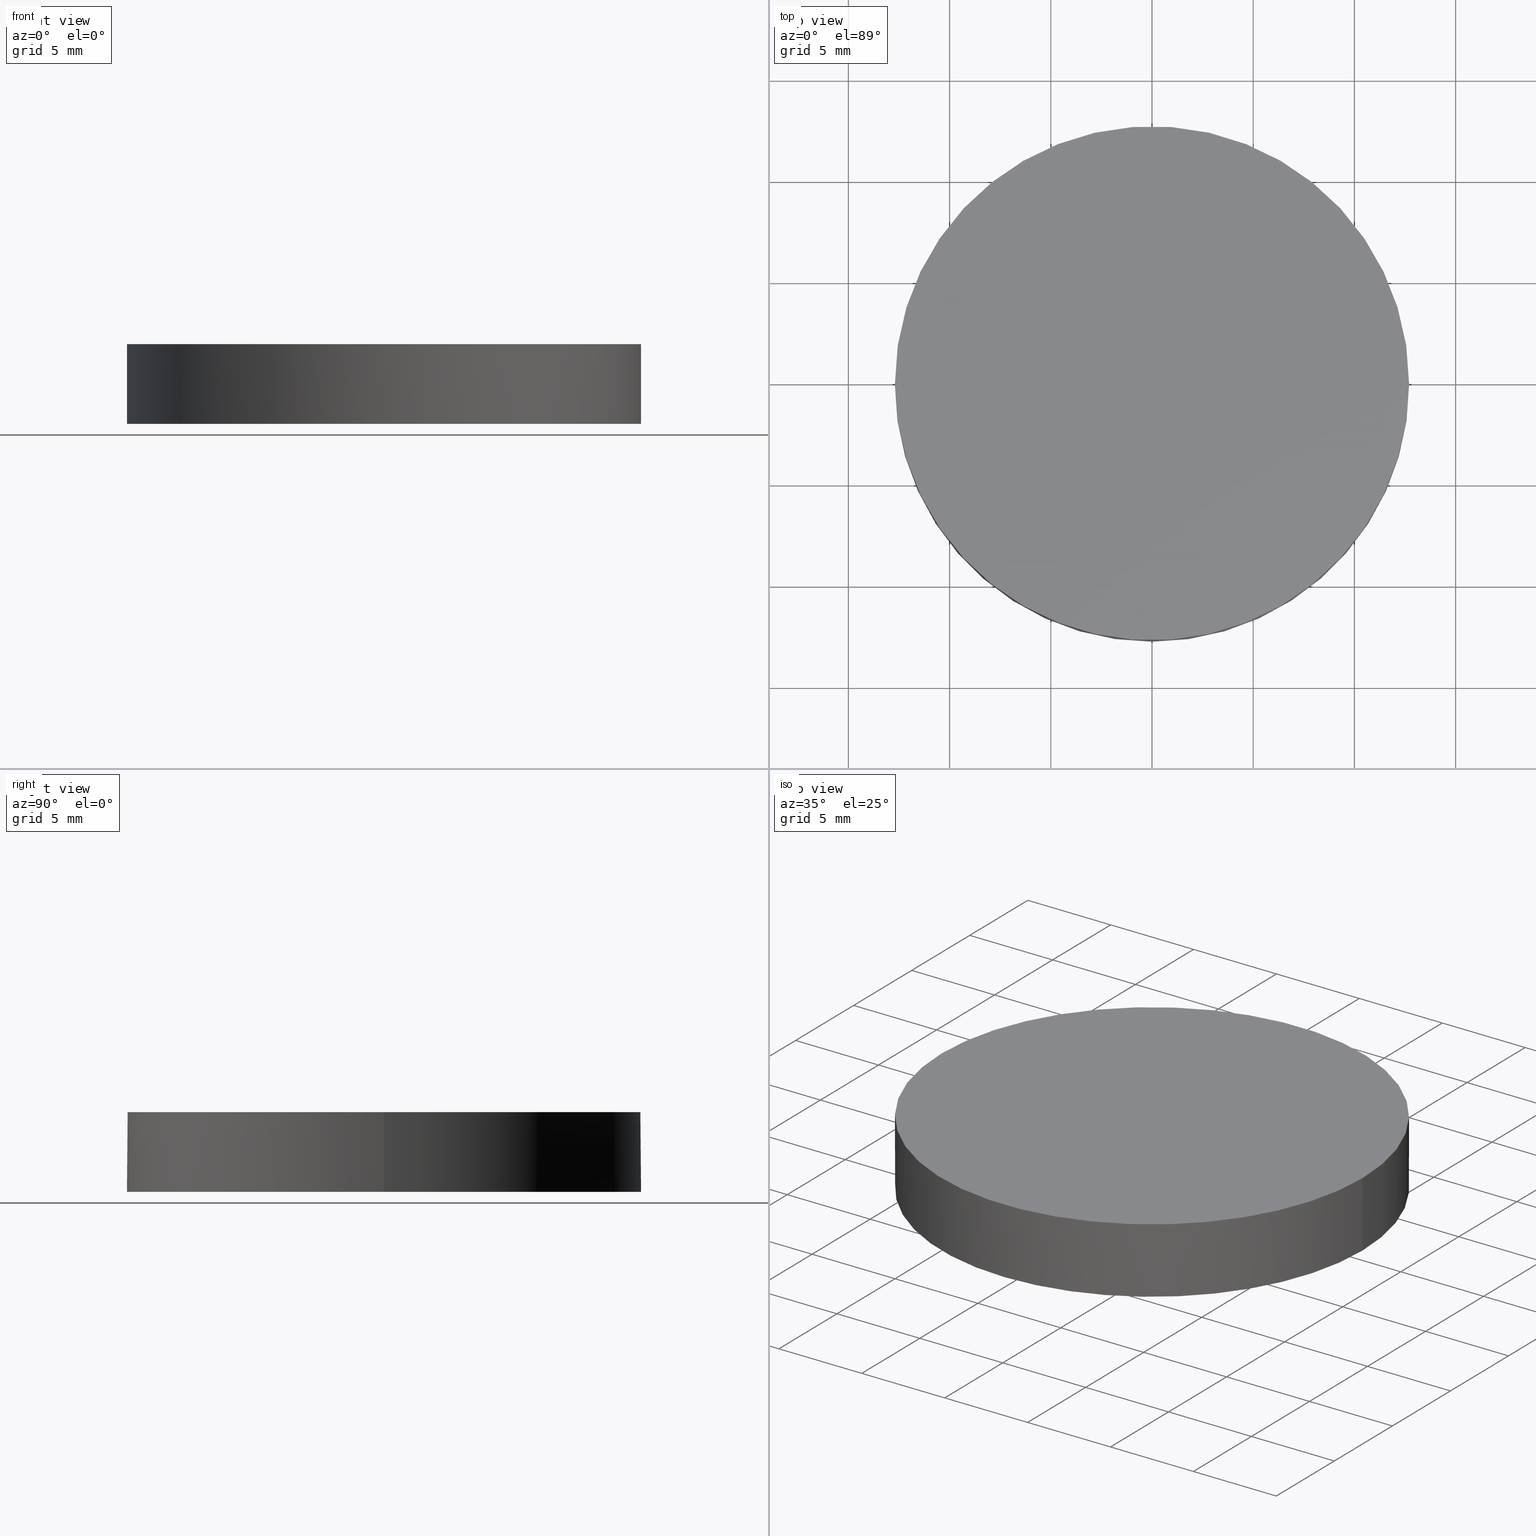
[diagram: canonical four-view strip — front | top / right | iso, engineering-drawing reading convention]
A machine part, canonical four-view strip (front | top / right | iso — engineering-drawing reading convention). The complete STEP part file that produces these views, byte-faithful:
ISO-10303-21;
HEADER;
FILE_DESCRIPTION (( 'STEP AP203' ),
    '1' );
FILE_NAME ('112-0245E BK7 pl-cv 25.4 F-450.STEP',
    '2019-01-15T10:34:14',
    ( '' ),
    ( '' ),
    'SwSTEP 2.0',
    'SolidWorks 2017',
    '' );
FILE_SCHEMA (( 'CONFIG_CONTROL_DESIGN' ));
ENDSEC;

DATA;
#1 = ORIENTED_EDGE ( 'NONE', *, *, #21, .T. ) ;
#2 = CARTESIAN_POINT ( 'NONE',  ( -4.263527609823435100, 4.288419956397405900, 0.1181612576788153000 ) ) ;
#3 = ORIENTED_EDGE ( 'NONE', *, *, #94, .T. ) ;
#4 = CARTESIAN_POINT ( 'NONE',  ( -12.75673950525867900, -12.85224669324310300, -0.7035338641108723800 ) ) ;
#5 = LOCAL_TIME ( 12, 34, 14.00000000000000000, #55 ) ;
#6 = DIRECTION ( 'NONE',  ( 0.0000000000000000000, 0.0000000000000000000, 1.000000000000000000 ) ) ;
#7 = CARTESIAN_POINT ( 'NONE',  ( 8.508214239662985200, -12.85224669324310500, -0.4706238805829514000 ) ) ;
#8 = DIRECTION ( 'NONE',  ( 0.0000000000000000000, 0.0000000000000000000, 1.000000000000000000 ) ) ;
#9 = CIRCLE ( 'NONE', #68, 12.69999999999999900 ) ;
#10 = DATE_AND_TIME ( #173, #85 ) ;
#11 =( NAMED_UNIT ( * ) PLANE_ANGLE_UNIT ( ) SI_UNIT ( $, .RADIAN. ) );
#12 = APPROVAL ( #153, 'UNSPECIFIED' ) ;
#13 = FACE_OUTER_BOUND ( 'NONE', #62, .T. ) ;
#14 = APPLICATION_CONTEXT ( 'configuration controlled 3d designs of mechanical parts and assemblies' ) ;
#15 = CARTESIAN_POINT ( 'NONE',  ( -5.684341886080800200E-014, 12.85224669324306000, -0.3541252136480543800 ) ) ;
#16 = ORIENTED_EDGE ( 'NONE', *, *, #64, .T. ) ;
#17 = AXIS2_PLACEMENT_3D ( 'NONE', #174, #154, #138 ) ;
#18 = CARTESIAN_POINT ( 'NONE',  ( -5.684341886080800200E-014, 12.69999999999988600, -0.3457788410602451500 ) ) ;
#19 = EDGE_LOOP ( 'NONE', ( #158, #203, #197 ) ) ;
#20 = LOCAL_TIME ( 12, 34, 14.00000000000000000, #220 ) ;
#21 = EDGE_CURVE ( 'NONE', #33, #37, #233, .T. ) ;
#22 = AXIS2_PLACEMENT_3D ( 'NONE', #57, #6, #46 ) ;
#23 = CARTESIAN_POINT ( 'NONE',  ( -1.179611963664228800E-013, 12.85224669324306000, -0.3541252136480597100 ) ) ;
#24 = CARTESIAN_POINT ( 'NONE',  ( -8.525456829707737300, -4.288419956397449400, 0.001426496694314620700 ) ) ;
#25 = APPROVAL_DATE_TIME ( #69, #12 ) ;
#26 = EDGE_LOOP ( 'NONE', ( #107, #221 ) ) ;
#27 = EDGE_CURVE ( 'NONE', #33, #198, #101, .T. ) ;
#28 =( NAMED_UNIT ( * ) SI_UNIT ( $, .STERADIAN. ) SOLID_ANGLE_UNIT ( ) );
#29 = CARTESIAN_POINT ( 'NONE',  ( 4.263527609823305500, 4.288419956397405900, 0.1181612576788217100 ) ) ;
#30 = DATE_TIME_ROLE ( 'classification_date' ) ;
#31 = APPLICATION_PROTOCOL_DEFINITION ( 'international standard', 'config_control_design', 1994, #78 ) ;
#32 = CARTESIAN_POINT ( 'NONE',  ( 12.69999999999999900, 2.442490654175340100E-015, -0.3457788410602499800 ) ) ;
#33 = VERTEX_POINT ( 'NONE', #73 ) ;
#34 = CALENDAR_DATE ( 2019, 15, 1 ) ;
#35 = CARTESIAN_POINT ( 'NONE',  ( -8.525456829707737300, 4.288419956397405900, 0.001426496694314024600 ) ) ;
#36 = AXIS2_PLACEMENT_3D ( 'NONE', #119, #157, #50 ) ;
#37 = VERTEX_POINT ( 'NONE', #18 ) ;
#38 = COORDINATED_UNIVERSAL_TIME_OFFSET ( 2, 0, .AHEAD. ) ;
#39 = UNCERTAINTY_MEASURE_WITH_UNIT (LENGTH_MEASURE( 1.000000000000000100E-005 ), #139, 'distance_accuracy_value', 'NONE');
#40 = ORIENTED_EDGE ( 'NONE', *, *, #222, .T. ) ;
#41 = APPROVAL_DATE_TIME ( #10, #169 ) ;
#42 = AXIS2_PLACEMENT_3D ( 'NONE', #231, #96, #229 ) ;
#43 = CARTESIAN_POINT ( 'NONE',  ( -5.684341886080800200E-014, -12.85224669324310300, -0.3541252136480543800 ) ) ;
#44 = ORIENTED_EDGE ( 'NONE', *, *, #178, .T. ) ;
#45 = CARTESIAN_POINT ( 'NONE',  ( 4.254904698442866000, 12.85224669324306200, -0.3541252136480544400 ) ) ;
#46 = DIRECTION ( 'NONE',  ( 1.000000000000000000, 0.0000000000000000000, 0.0000000000000000000 ) ) ;
#47 = PRODUCT_DEFINITION ( 'UNKNOWN', '', #213, #156 ) ;
#48 = CARTESIAN_POINT ( 'NONE',  ( 12.78259207824281600, 4.288419956397404100, -0.2319554979101992600 ) ) ;
#49 = ADVANCED_FACE ( 'NONE', ( #217 ), #114, .F. ) ;
#50 = DIRECTION ( 'NONE',  ( 0.0000000000000000000, 1.000000000000000000, -2.378369804252691300E-016 ) ) ;
#51 = ORIENTED_EDGE ( 'NONE', *, *, #87, .T. ) ;
#52 = PERSON_AND_ORGANIZATION ( #105, #76 ) ;
#53 = ORIENTED_EDGE ( 'NONE', *, *, #222, .F. ) ;
#54 = CYLINDRICAL_SURFACE ( 'NONE', #42, 12.69999999999999900 ) ;
#55 = COORDINATED_UNIVERSAL_TIME_OFFSET ( 2, 0, .AHEAD. ) ;
#56 = CC_DESIGN_PERSON_AND_ORGANIZATION_ASSIGNMENT ( #72, #171, ( #47 ) ) ;
#57 = CARTESIAN_POINT ( 'NONE',  ( 0.0000000000000000000, 0.0000000000000000000, 0.0000000000000000000 ) ) ;
#58 = CIRCLE ( 'NONE', #36, 233.4000000000000300 ) ;
#59 = CARTESIAN_POINT ( 'NONE',  ( 12.75673950525864500, -12.85224669324310300, -0.7035338641108660500 ) ) ;
#60 = CARTESIAN_POINT ( 'NONE',  ( 12.78259207824281600, -4.288419956397447700, -0.2319554979101987000 ) ) ;
#61 = CARTESIAN_POINT ( 'NONE',  ( 12.69999999999999900, 2.442490654175340100E-015, 3.600000000000001000 ) ) ;
#62 = EDGE_LOOP ( 'NONE', ( #163, #51, #16, #106, #193 ) ) ;
#63 = ADVANCED_FACE ( 'NONE', ( #152 ), #188, .T. ) ;
#64 = EDGE_CURVE ( 'NONE', #88, #33, #83, .T. ) ;
#65 = DATE_TIME_ROLE ( 'creation_date' ) ;
#66 = CARTESIAN_POINT ( 'NONE',  ( 12.75673950525864500, 12.85224669324306000, -0.7035338641108660500 ) ) ;
#67 = PERSON_AND_ORGANIZATION_ROLE ( 'design_owner' ) ;
#68 = AXIS2_PLACEMENT_3D ( 'NONE', #215, #98, #141 ) ;
#69 = DATE_AND_TIME ( #95, #184 ) ;
#70 = ORIENTED_EDGE ( 'NONE', *, *, #87, .F. ) ;
#71 = CYLINDRICAL_SURFACE ( 'NONE', #190, 12.69999999999999900 ) ;
#72 = PERSON_AND_ORGANIZATION ( #105, #76 ) ;
#73 = CARTESIAN_POINT ( 'NONE',  ( 12.69999999999999900, 2.442490654175340100E-015, -0.3457788410602499800 ) ) ;
#74 = CARTESIAN_POINT ( 'NONE',  ( -4.263527609823435100, -4.288419956397449400, 0.1181612576788159000 ) ) ;
#75 = CARTESIAN_POINT ( 'NONE',  ( -1.179611963664229100E-013, -4.288419956397447700, 0.1181612576788170100 ) ) ;
#76 = ORGANIZATION ( 'UNSPECIFIED', 'UNSPECIFIED', '' ) ;
#77 = CARTESIAN_POINT ( 'NONE',  ( 4.996003610813200500E-016, 2.442490654175340100E-015, -0.3457788410602499800 ) ) ;
#78 = APPLICATION_CONTEXT ( 'configuration controlled 3d designs of mechanical parts and assemblies' ) ;
#79 = APPROVAL_STATUS ( 'not_yet_approved' ) ;
#80 = SECURITY_CLASSIFICATION ( '', '', #93 ) ;
#81 =( BOUNDED_SURFACE ( )  B_SPLINE_SURFACE ( 3, 3, ( 
 ( #15, #45, #170, #66 ),
 ( #195, #29, #214, #48 ),
 ( #121, #118, #225, #60 ),
 ( #43, #187, #7, #59 ) ),
 .UNSPECIFIED., .F., .F., .F. ) 
 B_SPLINE_SURFACE_WITH_KNOTS ( ( 4, 4 ),
 ( 4, 4 ),
 ( 0.0000000000000000000, 1.000000000000000000 ),
 ( 0.0000000000000000000, 1.000000000000000000 ),
 .UNSPECIFIED. ) 
 GEOMETRIC_REPRESENTATION_ITEM ( )  RATIONAL_B_SPLINE_SURFACE ( (
 ( 1.000000000000000000, 0.9997500676927196800, 0.9997500676927196800, 1.000000000000000000),
 ( 0.9989885026745271000, 0.9987388231731071400, 0.9987388231731071400, 0.9989885026745271000),
 ( 0.9989885026745271000, 0.9987388231731071400, 0.9987388231731071400, 0.9989885026745271000),
 ( 1.000000000000000000, 0.9997500676927196800, 0.9997500676927196800, 1.000000000000000000) ) ) 
 REPRESENTATION_ITEM ( '' )  SURFACE ( )  );
#82 = EDGE_CURVE ( 'NONE', #198, #128, #9, .T. ) ;
#83 = CIRCLE ( 'NONE', #146, 12.69999999999999900 ) ;
#84 = PRODUCT ( '112-0245E BK7 pl-cv 25.4 F-450', '112-0245E BK7 pl-cv 25.4 F-450', '', ( #216 ) ) ;
#85 = LOCAL_TIME ( 12, 34, 14.00000000000000000, #38 ) ;
#86 = CC_DESIGN_SECURITY_CLASSIFICATION ( #80, ( #213 ) ) ;
#87 = EDGE_CURVE ( 'NONE', #185, #88, #155, .T. ) ;
#88 = VERTEX_POINT ( 'NONE', #160 ) ;
#89 = COORDINATED_UNIVERSAL_TIME_OFFSET ( 2, 0, .AHEAD. ) ;
#90 = CC_DESIGN_PERSON_AND_ORGANIZATION_ASSIGNMENT ( #52, #137, ( #80 ) ) ;
#91 = EDGE_LOOP ( 'NONE', ( #53, #3, #70 ) ) ;
#92 = CARTESIAN_POINT ( 'NONE',  ( -12.69999999999999900, 3.997792089092478900E-015, -0.3457788410602499800 ) ) ;
#93 = SECURITY_CLASSIFICATION_LEVEL ( 'unclassified' ) ;
#94 = EDGE_CURVE ( 'NONE', #37, #88, #58, .T. ) ;
#95 = CALENDAR_DATE ( 2019, 15, 1 ) ;
#96 = DIRECTION ( 'NONE',  ( 0.0000000000000000000, 0.0000000000000000000, 1.000000000000000000 ) ) ;
#97 = APPROVAL_ROLE ( '' ) ;
#98 = DIRECTION ( 'NONE',  ( -0.0000000000000000000, -0.0000000000000000000, -1.000000000000000000 ) ) ;
#99 = APPROVAL_ROLE ( '' ) ;
#100 = ADVANCED_FACE ( 'NONE', ( #208 ), #54, .T. ) ;
#101 = LINE ( 'NONE', #32, #183 ) ;
#102 = DATE_AND_TIME ( #111, #20 ) ;
#103 = DIRECTION ( 'NONE',  ( 0.0000000000000000000, 0.0000000000000000000, 1.000000000000000000 ) ) ;
#104 = CC_DESIGN_APPROVAL ( #169, ( #80 ) ) ;
#105 = PERSON ( 'UNSPECIFIED', 'UNSPECIFIED', 'UNSPECIFIED', ('UNSPECIFIED'), ('UNSPECIFIED'), ('UNSPECIFIED') ) ;
#106 = ORIENTED_EDGE ( 'NONE', *, *, #27, .T. ) ;
#107 = ORIENTED_EDGE ( 'NONE', *, *, #82, .F. ) ;
#108 = CARTESIAN_POINT ( 'NONE',  ( -4.254904698442995700, -12.85224669324310500, -0.3541252136480608800 ) ) ;
#109 = PERSON_AND_ORGANIZATION ( #105, #76 ) ;
#110 = AXIS2_PLACEMENT_3D ( 'NONE', #175, #120, #191 ) ;
#111 = CALENDAR_DATE ( 2019, 15, 1 ) ;
#112 = CARTESIAN_POINT ( 'NONE',  ( 4.996003610813200500E-016, 2.442490654175340100E-015, -0.3457788410602499800 ) ) ;
#113 = CC_DESIGN_PERSON_AND_ORGANIZATION_ASSIGNMENT ( #234, #230, ( #213 ) ) ;
#114 =( BOUNDED_SURFACE ( )  B_SPLINE_SURFACE ( 3, 3, ( 
 ( #127, #148, #204, #23 ),
 ( #130, #35, #2, #181 ),
 ( #202, #24, #74, #75 ),
 ( #4, #205, #108, #182 ) ),
 .UNSPECIFIED., .F., .F., .F. ) 
 B_SPLINE_SURFACE_WITH_KNOTS ( ( 4, 4 ),
 ( 4, 4 ),
 ( 0.0000000000000000000, 1.000000000000000000 ),
 ( 0.0000000000000000000, 1.000000000000000000 ),
 .UNSPECIFIED. ) 
 GEOMETRIC_REPRESENTATION_ITEM ( )  RATIONAL_B_SPLINE_SURFACE ( (
 ( 1.000000000000000000, 0.9997500676927196800, 0.9997500676927196800, 1.000000000000000000),
 ( 0.9989885026745271000, 0.9987388231731071400, 0.9987388231731071400, 0.9989885026745271000),
 ( 0.9989885026745271000, 0.9987388231731071400, 0.9987388231731071400, 0.9989885026745271000),
 ( 1.000000000000000000, 0.9997500676927196800, 0.9997500676927196800, 1.000000000000000000) ) ) 
 REPRESENTATION_ITEM ( '' )  SURFACE ( )  );
#115 = CARTESIAN_POINT ( 'NONE',  ( 4.996003610813200500E-016, 2.442490654175340100E-015, -0.3457788410602499800 ) ) ;
#116 = DIRECTION ( 'NONE',  ( 0.0000000000000000000, 0.0000000000000000000, 1.000000000000000000 ) ) ;
#117 = APPROVAL_PERSON_ORGANIZATION ( #136, #12, #99 ) ;
#118 = CARTESIAN_POINT ( 'NONE',  ( 4.263527609823305500, -4.288419956397449400, 0.1181612576788222500 ) ) ;
#119 = CARTESIAN_POINT ( 'NONE',  ( -5.684341886080800200E-014, -1.421085471520200100E-014, -233.4000000000000300 ) ) ;
#120 = DIRECTION ( 'NONE',  ( -0.0000000000000000000, -0.0000000000000000000, -1.000000000000000000 ) ) ;
#121 = CARTESIAN_POINT ( 'NONE',  ( -5.684341886080800200E-014, -4.288419956397447700, 0.1181612576788222500 ) ) ;
#122 = EDGE_LOOP ( 'NONE', ( #1, #40, #44, #144, #200 ) ) ;
#123 = PERSON_AND_ORGANIZATION ( #105, #76 ) ;
#124 =( GEOMETRIC_REPRESENTATION_CONTEXT ( 3 ) GLOBAL_UNCERTAINTY_ASSIGNED_CONTEXT ( ( #39 ) ) GLOBAL_UNIT_ASSIGNED_CONTEXT ( ( #139, #11, #28 ) ) REPRESENTATION_CONTEXT ( 'NONE', 'WORKASPACE' ) );
#125 = DIRECTION ( 'NONE',  ( 1.000000000000000000, 0.0000000000000000000, 0.0000000000000000000 ) ) ;
#126 = CIRCLE ( 'NONE', #206, 12.69999999999999900 ) ;
#127 = CARTESIAN_POINT ( 'NONE',  ( -12.75673950525867900, 12.85224669324306000, -0.7035338641108723800 ) ) ;
#128 = VERTEX_POINT ( 'NONE', #176 ) ;
#129 = CC_DESIGN_PERSON_AND_ORGANIZATION_ASSIGNMENT ( #123, #67, ( #84 ) ) ;
#130 = CARTESIAN_POINT ( 'NONE',  ( -12.78259207824285000, 4.288419956397404100, -0.2319554979102056700 ) ) ;
#131 = PRODUCT_DEFINITION_SHAPE ( 'NONE', 'NONE',  #47 ) ;
#132 = CARTESIAN_POINT ( 'NONE',  ( 0.0000000000000000000, 26.11199999999999800, 3.600000000000000500 ) ) ;
#133 = FACE_OUTER_BOUND ( 'NONE', #19, .T. ) ;
#134 = PERSON_AND_ORGANIZATION ( #105, #76 ) ;
#135 = CC_DESIGN_APPROVAL ( #162, ( #213 ) ) ;
#136 = PERSON_AND_ORGANIZATION ( #105, #76 ) ;
#137 = PERSON_AND_ORGANIZATION_ROLE ( 'classification_officer' ) ;
#138 = DIRECTION ( 'NONE',  ( 1.000000000000000000, 0.0000000000000000000, 0.0000000000000000000 ) ) ;
#139 =( LENGTH_UNIT ( ) NAMED_UNIT ( * ) SI_UNIT ( .MILLI., .METRE. ) );
#140 = LINE ( 'NONE', #92, #151 ) ;
#141 = DIRECTION ( 'NONE',  ( 1.000000000000000000, 0.0000000000000000000, 0.0000000000000000000 ) ) ;
#142 = CC_DESIGN_DATE_AND_TIME_ASSIGNMENT ( #145, #30, ( #80 ) ) ;
#143 = MANIFOLD_SOLID_BREP ( 'Imported1', #211 ) ;
#144 = ORIENTED_EDGE ( 'NONE', *, *, #227, .T. ) ;
#145 = DATE_AND_TIME ( #34, #5 ) ;
#146 = AXIS2_PLACEMENT_3D ( 'NONE', #115, #210, #168 ) ;
#147 = PRODUCT_RELATED_PRODUCT_CATEGORY ( 'detail', '', ( #84 ) ) ;
#148 = CARTESIAN_POINT ( 'NONE',  ( -8.508214239663063300, 12.85224669324306200, -0.4706238805829616700 ) ) ;
#149 = DATE_AND_TIME ( #180, #161 ) ;
#150 = CC_DESIGN_PERSON_AND_ORGANIZATION_ASSIGNMENT ( #109, #212, ( #213 ) ) ;
#151 = VECTOR ( 'NONE', #116, 1000.000000000000000 ) ;
#152 = FACE_OUTER_BOUND ( 'NONE', #26, .T. ) ;
#153 = APPROVAL_STATUS ( 'not_yet_approved' ) ;
#154 = DIRECTION ( 'NONE',  ( 0.0000000000000000000, 0.0000000000000000000, 1.000000000000000000 ) ) ;
#155 = CIRCLE ( 'NONE', #17, 12.69999999999999900 ) ;
#156 = DESIGN_CONTEXT ( 'detailed design', #78, 'design' ) ;
#157 = DIRECTION ( 'NONE',  ( 1.000000000000000000, 0.0000000000000000000, 0.0000000000000000000 ) ) ;
#158 = ORIENTED_EDGE ( 'NONE', *, *, #94, .F. ) ;
#159 = APPROVAL_PERSON_ORGANIZATION ( #223, #169, #97 ) ;
#160 = CARTESIAN_POINT ( 'NONE',  ( -5.684341886080800200E-014, -12.69999999999989600, -0.3457788410602451500 ) ) ;
#161 = LOCAL_TIME ( 12, 34, 14.00000000000000000, #89 ) ;
#162 = APPROVAL ( #196, 'UNSPECIFIED' ) ;
#163 = ORIENTED_EDGE ( 'NONE', *, *, #178, .F. ) ;
#164 = CIRCLE ( 'NONE', #110, 12.69999999999999900 ) ;
#165 = ADVANCED_FACE ( 'NONE', ( #133 ), #81, .F. ) ;
#166 = DIRECTION ( 'NONE',  ( 1.000000000000000000, 0.0000000000000000000, 0.0000000000000000000 ) ) ;
#167 = APPLICATION_PROTOCOL_DEFINITION ( 'international standard', 'config_control_design', 1994, #14 ) ;
#168 = DIRECTION ( 'NONE',  ( 1.000000000000000000, 0.0000000000000000000, 0.0000000000000000000 ) ) ;
#169 = APPROVAL ( #79, 'UNSPECIFIED' ) ;
#170 = CARTESIAN_POINT ( 'NONE',  ( 8.508214239662985200, 12.85224669324306200, -0.4706238805829514000 ) ) ;
#171 = PERSON_AND_ORGANIZATION_ROLE ( 'creator' ) ;
#172 = SHAPE_DEFINITION_REPRESENTATION ( #131, #226 ) ;
#173 = CALENDAR_DATE ( 2019, 15, 1 ) ;
#174 = CARTESIAN_POINT ( 'NONE',  ( 4.996003610813200500E-016, 2.442490654175340100E-015, -0.3457788410602499800 ) ) ;
#175 = CARTESIAN_POINT ( 'NONE',  ( 4.996003610813200500E-016, 2.442490654175340100E-015, 3.600000000000001000 ) ) ;
#176 = CARTESIAN_POINT ( 'NONE',  ( -12.69999999999999900, 3.997792089092478900E-015, 3.600000000000001000 ) ) ;
#177 = ADVANCED_FACE ( 'NONE', ( #13 ), #71, .T. ) ;
#178 = EDGE_CURVE ( 'NONE', #185, #128, #140, .T. ) ;
#179 = CC_DESIGN_APPROVAL ( #12, ( #47 ) ) ;
#180 = CALENDAR_DATE ( 2019, 15, 1 ) ;
#181 = CARTESIAN_POINT ( 'NONE',  ( -1.179611963664229100E-013, 4.288419956397404100, 0.1181612576788164100 ) ) ;
#182 = CARTESIAN_POINT ( 'NONE',  ( -1.179611963664228800E-013, -12.85224669324310300, -0.3541252136480597100 ) ) ;
#183 = VECTOR ( 'NONE', #235, 1000.000000000000000 ) ;
#184 = LOCAL_TIME ( 12, 34, 14.00000000000000000, #199 ) ;
#185 = VERTEX_POINT ( 'NONE', #189 ) ;
#186 = AXIS2_PLACEMENT_3D ( 'NONE', #219, #103, #125 ) ;
#187 = CARTESIAN_POINT ( 'NONE',  ( 4.254904698442866000, -12.85224669324310500, -0.3541252136480544400 ) ) ;
#188 = PLANE ( 'NONE',  #201 ) ;
#189 = CARTESIAN_POINT ( 'NONE',  ( -12.69999999999999900, 3.997792089092478900E-015, -0.3457788410602499800 ) ) ;
#190 = AXIS2_PLACEMENT_3D ( 'NONE', #112, #8, #166 ) ;
#191 = DIRECTION ( 'NONE',  ( 1.000000000000000000, 0.0000000000000000000, 0.0000000000000000000 ) ) ;
#192 = APPROVAL_ROLE ( '' ) ;
#193 = ORIENTED_EDGE ( 'NONE', *, *, #82, .T. ) ;
#194 = APPROVAL_PERSON_ORGANIZATION ( #134, #162, #192 ) ;
#195 = CARTESIAN_POINT ( 'NONE',  ( -5.684341886080800200E-014, 4.288419956397404100, 0.1181612576788217100 ) ) ;
#196 = APPROVAL_STATUS ( 'not_yet_approved' ) ;
#197 = ORIENTED_EDGE ( 'NONE', *, *, #64, .F. ) ;
#198 = VERTEX_POINT ( 'NONE', #61 ) ;
#199 = COORDINATED_UNIVERSAL_TIME_OFFSET ( 2, 0, .AHEAD. ) ;
#200 = ORIENTED_EDGE ( 'NONE', *, *, #27, .F. ) ;
#201 = AXIS2_PLACEMENT_3D ( 'NONE', #132, #209, #228 ) ;
#202 = CARTESIAN_POINT ( 'NONE',  ( -12.78259207824285000, -4.288419956397447700, -0.2319554979102050600 ) ) ;
#203 = ORIENTED_EDGE ( 'NONE', *, *, #21, .F. ) ;
#204 = CARTESIAN_POINT ( 'NONE',  ( -4.254904698442995700, 12.85224669324306200, -0.3541252136480608800 ) ) ;
#205 = CARTESIAN_POINT ( 'NONE',  ( -8.508214239663063300, -12.85224669324310500, -0.4706238805829616700 ) ) ;
#206 = AXIS2_PLACEMENT_3D ( 'NONE', #77, #207, #224 ) ;
#207 = DIRECTION ( 'NONE',  ( 0.0000000000000000000, 0.0000000000000000000, 1.000000000000000000 ) ) ;
#208 = FACE_OUTER_BOUND ( 'NONE', #122, .T. ) ;
#209 = DIRECTION ( 'NONE',  ( 0.0000000000000000000, 0.0000000000000000000, 1.000000000000000000 ) ) ;
#210 = DIRECTION ( 'NONE',  ( 0.0000000000000000000, 0.0000000000000000000, 1.000000000000000000 ) ) ;
#211 = CLOSED_SHELL ( 'NONE', ( #49, #100, #165, #177, #63 ) ) ;
#212 = PERSON_AND_ORGANIZATION_ROLE ( 'creator' ) ;
#213 = PRODUCT_DEFINITION_FORMATION_WITH_SPECIFIED_SOURCE ( 'ANY', '', #84, .NOT_KNOWN. ) ;
#214 = CARTESIAN_POINT ( 'NONE',  ( 8.525456829707655600, 4.288419956397405900, 0.001426496694324460300 ) ) ;
#215 = CARTESIAN_POINT ( 'NONE',  ( 4.996003610813200500E-016, 2.442490654175340100E-015, 3.600000000000001000 ) ) ;
#216 = MECHANICAL_CONTEXT ( 'NONE', #14, 'mechanical' ) ;
#217 = FACE_OUTER_BOUND ( 'NONE', #91, .T. ) ;
#218 = CC_DESIGN_DATE_AND_TIME_ASSIGNMENT ( #149, #65, ( #47 ) ) ;
#219 = CARTESIAN_POINT ( 'NONE',  ( 4.996003610813200500E-016, 2.442490654175340100E-015, -0.3457788410602499800 ) ) ;
#220 = COORDINATED_UNIVERSAL_TIME_OFFSET ( 2, 0, .AHEAD. ) ;
#221 = ORIENTED_EDGE ( 'NONE', *, *, #227, .F. ) ;
#222 = EDGE_CURVE ( 'NONE', #37, #185, #126, .T. ) ;
#223 = PERSON_AND_ORGANIZATION ( #105, #76 ) ;
#224 = DIRECTION ( 'NONE',  ( 1.000000000000000000, 0.0000000000000000000, 0.0000000000000000000 ) ) ;
#225 = CARTESIAN_POINT ( 'NONE',  ( 8.525456829707655600, -4.288419956397449400, 0.001426496694325029100 ) ) ;
#226 = ADVANCED_BREP_SHAPE_REPRESENTATION ( '112-0245E BK7 pl-cv 25.4 F-450', ( #143, #22 ), #124 ) ;
#227 = EDGE_CURVE ( 'NONE', #128, #198, #164, .T. ) ;
#228 = DIRECTION ( 'NONE',  ( 1.000000000000000000, 0.0000000000000000000, -0.0000000000000000000 ) ) ;
#229 = DIRECTION ( 'NONE',  ( 1.000000000000000000, 0.0000000000000000000, 0.0000000000000000000 ) ) ;
#230 = PERSON_AND_ORGANIZATION_ROLE ( 'design_supplier' ) ;
#231 = CARTESIAN_POINT ( 'NONE',  ( 4.996003610813200500E-016, 2.442490654175340100E-015, -0.3457788410602499800 ) ) ;
#232 = APPROVAL_DATE_TIME ( #102, #162 ) ;
#233 = CIRCLE ( 'NONE', #186, 12.69999999999999900 ) ;
#234 = PERSON_AND_ORGANIZATION ( #105, #76 ) ;
#235 = DIRECTION ( 'NONE',  ( 0.0000000000000000000, 0.0000000000000000000, 1.000000000000000000 ) ) ;
ENDSEC;
END-ISO-10303-21;
